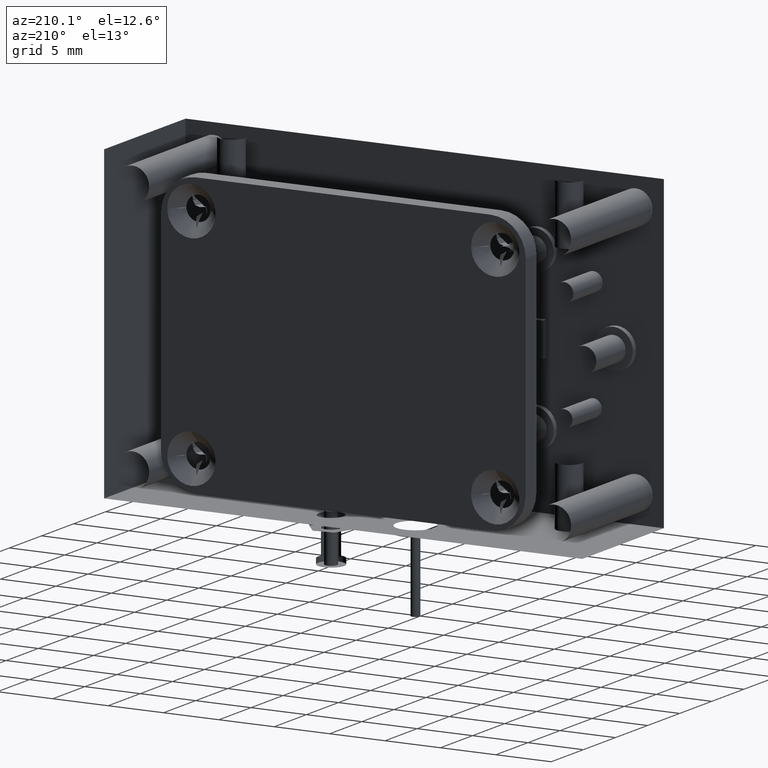
[diagram: clean part render]
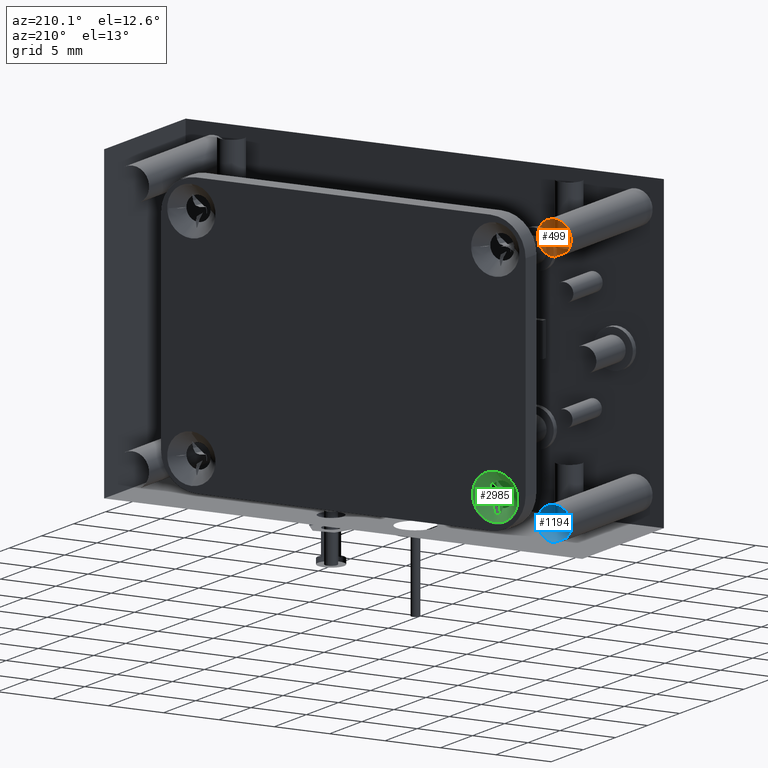
[diagram: same view with three faces highlighted in distinct colors, each labeled with its STEP entity id]
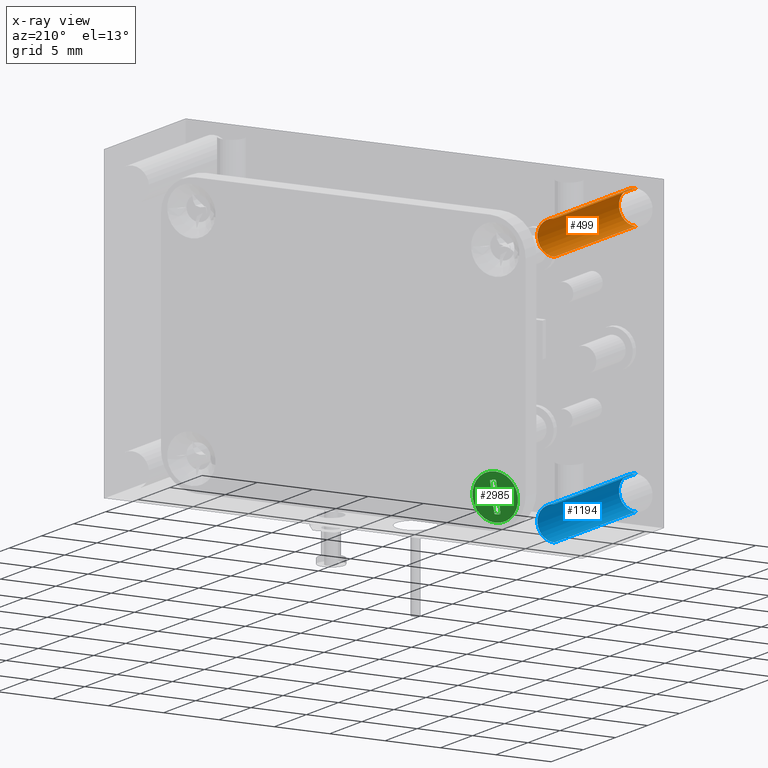
[diagram: x-ray of the same camera — body ghosted, the three highlighted faces saturated]
A machine part, auxiliary view with three faces highlighted in distinct colors.
The next image is the same camera in x-ray (body ghosted, the three faces saturated) — at least one of them is partly hidden behind the body in this view.
Their STEP definitions:

[orange] entity #499 — the highlighted cylindrical surface (edge-blend (fillet) strip) has radius 1.524 mm, axis along (0, 1, 0).
#51 = VERTEX_POINT ( 'NONE', #6882 ) ;
#95 = CARTESIAN_POINT ( 'NONE',  ( -0.8393176255151992800, 2.059071440405353400, 0.9365758433327454600 ) ) ;
#184 = DIRECTION ( 'NONE',  ( 0.0000000000000000000, 1.000000000000000000, 0.0000000000000000000 ) ) ;
#256 = DIRECTION ( 'NONE',  ( -0.0000000000000000000, -1.000000000000000000, -0.0000000000000000000 ) ) ;
#366 = CARTESIAN_POINT ( 'NONE',  ( -0.8393176255151992800, 2.059071440405353400, 0.8765758433327455200 ) ) ;
#394 = EDGE_CURVE ( 'NONE', #4645, #51, #834, .T. ) ;
#499 = ADVANCED_FACE ( 'NONE', ( #4129 ), #7767, .T. ) ;
#710 = DIRECTION ( 'NONE',  ( -0.0000000000000000000, -1.000000000000000000, -0.0000000000000000000 ) ) ;
#834 = CIRCLE ( 'NONE', #3010, 0.05999999999999990800 ) ;
#965 = DIRECTION ( 'NONE',  ( 0.0000000000000000000, 1.000000000000000000, 0.0000000000000000000 ) ) ;
#1040 = CARTESIAN_POINT ( 'NONE',  ( -0.8393176255151992800, 2.059071440405353400, 0.9365758433327454600 ) ) ;
#1469 = CARTESIAN_POINT ( 'NONE',  ( -0.8393176255151992800, 1.559071440405353200, 0.9365758433327454600 ) ) ;
#1525 = CARTESIAN_POINT ( 'NONE',  ( -0.8393176255151992800, 1.559071440405353200, 0.9965758433327452900 ) ) ;
#1807 = ORIENTED_EDGE ( 'NONE', *, *, #3062, .F. ) ;
#2604 = LINE ( 'NONE', #3885, #7151 ) ;
#2918 = DIRECTION ( 'NONE',  ( 0.0000000000000000000, 0.0000000000000000000, 1.000000000000000000 ) ) ;
#3010 = AXIS2_PLACEMENT_3D ( 'NONE', #95, #710, #5786 ) ;
#3062 = EDGE_CURVE ( 'NONE', #6809, #3542, #3183, .T. ) ;
#3183 = CIRCLE ( 'NONE', #5428, 0.05999999999999990800 ) ;
#3542 = VERTEX_POINT ( 'NONE', #1525 ) ;
#3570 = EDGE_CURVE ( 'NONE', #3542, #51, #3974, .T. ) ;
#3730 = ORIENTED_EDGE ( 'NONE', *, *, #394, .T. ) ;
#3885 = CARTESIAN_POINT ( 'NONE',  ( -0.8393176255151992800, 2.059071440405353400, 0.8765758433327455200 ) ) ;
#3974 = LINE ( 'NONE', #4643, #5142 ) ;
#4129 = FACE_OUTER_BOUND ( 'NONE', #7302, .T. ) ;
#4643 = CARTESIAN_POINT ( 'NONE',  ( -0.8393176255151992800, 2.059071440405353400, 0.9965758433327452900 ) ) ;
#4645 = VERTEX_POINT ( 'NONE', #366 ) ;
#4646 = DIRECTION ( 'NONE',  ( 0.0000000000000000000, 0.0000000000000000000, 1.000000000000000000 ) ) ;
#4669 = DIRECTION ( 'NONE',  ( 0.0000000000000000000, 1.000000000000000000, 0.0000000000000000000 ) ) ;
#5142 = VECTOR ( 'NONE', #965, 39.37007874015748100 ) ;
#5428 = AXIS2_PLACEMENT_3D ( 'NONE', #1469, #256, #4646 ) ;
#5786 = DIRECTION ( 'NONE',  ( 0.0000000000000000000, 0.0000000000000000000, 1.000000000000000000 ) ) ;
#6421 = AXIS2_PLACEMENT_3D ( 'NONE', #1040, #4669, #2918 ) ;
#6703 = ORIENTED_EDGE ( 'NONE', *, *, #7576, .T. ) ;
#6736 = ORIENTED_EDGE ( 'NONE', *, *, #3570, .F. ) ;
#6809 = VERTEX_POINT ( 'NONE', #7511 ) ;
#6882 = CARTESIAN_POINT ( 'NONE',  ( -0.8393176255151992800, 2.059071440405353400, 0.9965758433327452900 ) ) ;
#7151 = VECTOR ( 'NONE', #184, 39.37007874015748100 ) ;
#7302 = EDGE_LOOP ( 'NONE', ( #1807, #6703, #3730, #6736 ) ) ;
#7511 = CARTESIAN_POINT ( 'NONE',  ( -0.8393176255151992800, 1.559071440405353200, 0.8765758433327455200 ) ) ;
#7576 = EDGE_CURVE ( 'NONE', #6809, #4645, #2604, .T. ) ;
#7767 = CYLINDRICAL_SURFACE ( 'NONE', #6421, 0.05999999999999990800 ) ;

[blue] entity #1194 — the highlighted cylindrical surface (edge-blend (fillet) strip) has radius 1.524 mm, axis along (0, 1, 0).
#28 = CARTESIAN_POINT ( 'NONE',  ( -0.8393176255151992800, 2.059071440405353400, -0.02342415666725442700 ) ) ;
#40 = AXIS2_PLACEMENT_3D ( 'NONE', #5148, #1432, #2054 ) ;
#169 = LINE ( 'NONE', #7915, #3172 ) ;
#542 = DIRECTION ( 'NONE',  ( 0.0000000000000000000, 1.000000000000000000, 0.0000000000000000000 ) ) ;
#727 = FACE_OUTER_BOUND ( 'NONE', #4775, .T. ) ;
#905 = DIRECTION ( 'NONE',  ( 0.0000000000000000000, 0.0000000000000000000, 1.000000000000000000 ) ) ;
#1194 = ADVANCED_FACE ( 'NONE', ( #727 ), #1506, .T. ) ;
#1199 = DIRECTION ( 'NONE',  ( -0.0000000000000000000, -1.000000000000000000, -0.0000000000000000000 ) ) ;
#1268 = DIRECTION ( 'NONE',  ( 0.0000000000000000000, 1.000000000000000000, 0.0000000000000000000 ) ) ;
#1432 = DIRECTION ( 'NONE',  ( 0.0000000000000000000, 1.000000000000000000, 0.0000000000000000000 ) ) ;
#1483 = EDGE_CURVE ( 'NONE', #4902, #7183, #7211, .T. ) ;
#1506 = CYLINDRICAL_SURFACE ( 'NONE', #40, 0.05999999999999990800 ) ;
#1905 = DIRECTION ( 'NONE',  ( 0.0000000000000000000, 0.0000000000000000000, 1.000000000000000000 ) ) ;
#2054 = DIRECTION ( 'NONE',  ( 0.0000000000000000000, 0.0000000000000000000, 1.000000000000000000 ) ) ;
#3172 = VECTOR ( 'NONE', #542, 39.37007874015748100 ) ;
#3260 = CARTESIAN_POINT ( 'NONE',  ( -0.8393176255151992800, 1.559071440405353200, 0.09657584333274538100 ) ) ;
#3373 = CARTESIAN_POINT ( 'NONE',  ( -0.8393176255151992800, 1.559071440405353200, 0.03657584333274548100 ) ) ;
#3782 = CARTESIAN_POINT ( 'NONE',  ( -0.8393176255151992800, 2.059071440405353400, -0.02342415666725442700 ) ) ;
#3791 = CIRCLE ( 'NONE', #7035, 0.05999999999999990800 ) ;
#3994 = DIRECTION ( 'NONE',  ( -0.0000000000000000000, -1.000000000000000000, -0.0000000000000000000 ) ) ;
#4025 = VERTEX_POINT ( 'NONE', #5884 ) ;
#4775 = EDGE_LOOP ( 'NONE', ( #5507, #6858, #6996, #6436 ) ) ;
#4826 = VECTOR ( 'NONE', #1268, 39.37007874015748100 ) ;
#4841 = AXIS2_PLACEMENT_3D ( 'NONE', #6157, #1199, #1905 ) ;
#4902 = VERTEX_POINT ( 'NONE', #3782 ) ;
#5148 = CARTESIAN_POINT ( 'NONE',  ( -0.8393176255151992800, 2.059071440405353400, 0.03657584333274548100 ) ) ;
#5268 = EDGE_CURVE ( 'NONE', #6385, #7183, #169, .T. ) ;
#5507 = ORIENTED_EDGE ( 'NONE', *, *, #6465, .F. ) ;
#5884 = CARTESIAN_POINT ( 'NONE',  ( -0.8393176255151992800, 1.559071440405353200, -0.02342415666725442700 ) ) ;
#5911 = CARTESIAN_POINT ( 'NONE',  ( -0.8393176255151992800, 2.059071440405353400, 0.09657584333274538100 ) ) ;
#6157 = CARTESIAN_POINT ( 'NONE',  ( -0.8393176255151992800, 2.059071440405353400, 0.03657584333274548100 ) ) ;
#6385 = VERTEX_POINT ( 'NONE', #3260 ) ;
#6436 = ORIENTED_EDGE ( 'NONE', *, *, #5268, .F. ) ;
#6465 = EDGE_CURVE ( 'NONE', #4025, #6385, #3791, .T. ) ;
#6858 = ORIENTED_EDGE ( 'NONE', *, *, #7829, .T. ) ;
#6996 = ORIENTED_EDGE ( 'NONE', *, *, #1483, .T. ) ;
#7035 = AXIS2_PLACEMENT_3D ( 'NONE', #3373, #3994, #905 ) ;
#7183 = VERTEX_POINT ( 'NONE', #5911 ) ;
#7211 = CIRCLE ( 'NONE', #4841, 0.05999999999999990800 ) ;
#7792 = LINE ( 'NONE', #28, #4826 ) ;
#7829 = EDGE_CURVE ( 'NONE', #4025, #4902, #7792, .T. ) ;
#7915 = CARTESIAN_POINT ( 'NONE',  ( -0.8393176255151992800, 2.059071440405353400, 0.09657584333274538100 ) ) ;

[green] entity #2985 — the highlighted planar face has unit normal (-0, -1, -0).
#78 = VECTOR ( 'NONE', #1760, 39.37007874015748900 ) ;
#155 = ORIENTED_EDGE ( 'NONE', *, *, #205, .T. ) ;
#156 = LINE ( 'NONE', #4709, #826 ) ;
#158 = ORIENTED_EDGE ( 'NONE', *, *, #3581, .T. ) ;
#170 = CIRCLE ( 'NONE', #4952, 0.05400000000119558500 ) ;
#171 = LINE ( 'NONE', #501, #7698 ) ;
#175 = VECTOR ( 'NONE', #1778, 39.37007874015748100 ) ;
#178 = CARTESIAN_POINT ( 'NONE',  ( -0.6832499092327498600, 2.058571440406308000, 0.09387236906173145000 ) ) ;
#181 = VECTOR ( 'NONE', #1459, 39.37007874015748100 ) ;
#200 = EDGE_CURVE ( 'NONE', #6327, #332, #361, .T. ) ;
#205 = EDGE_CURVE ( 'NONE', #220, #1063, #3462, .T. ) ;
#220 = VERTEX_POINT ( 'NONE', #2013 ) ;
#238 = AXIS2_PLACEMENT_3D ( 'NONE', #2693, #5064, #1405 ) ;
#257 = VECTOR ( 'NONE', #7611, 39.37007874015748100 ) ;
#272 = LINE ( 'NONE', #7219, #78 ) ;
#332 = VERTEX_POINT ( 'NONE', #901 ) ;
#361 = CIRCLE ( 'NONE', #238, 0.08099999999659131300 ) ;
#362 = ORIENTED_EDGE ( 'NONE', *, *, #543, .T. ) ;
#370 = VECTOR ( 'NONE', #6411, 39.37007874015748900 ) ;
#388 = DIRECTION ( 'NONE',  ( -2.500602361698261400E-015, 1.000000000000000000, 3.811847815847947800E-016 ) ) ;
#445 = EDGE_CURVE ( 'NONE', #6315, #2494, #6747, .T. ) ;
#471 = LINE ( 'NONE', #3213, #2322 ) ;
#497 = CARTESIAN_POINT ( 'NONE',  ( -0.6293176255151993200, 2.058571440404362000, 0.09657584333274524300 ) ) ;
#501 = CARTESIAN_POINT ( 'NONE',  ( -0.6351939347924855400, 2.058571440405353200, 0.1296940780815344600 ) ) ;
#543 = EDGE_CURVE ( 'NONE', #332, #6327, #1219, .T. ) ;
#556 = EDGE_CURVE ( 'NONE', #7578, #4805, #6167, .T. ) ;
#615 = CARTESIAN_POINT ( 'NONE',  ( -0.6293176255151993200, 2.058571440406599800, 0.09657584333274524300 ) ) ;
#668 = ORIENTED_EDGE ( 'NONE', *, *, #2166, .T. ) ;
#741 = CARTESIAN_POINT ( 'NONE',  ( -0.6799948677348935900, 2.058571440406014900, 0.1152256991263523200 ) ) ;
#742 = CARTESIAN_POINT ( 'NONE',  ( -0.6293176255151993200, 2.058571440404362000, 0.01557584333615396000 ) ) ;
#750 = EDGE_CURVE ( 'NONE', #4805, #2010, #156, .T. ) ;
#773 = CARTESIAN_POINT ( 'NONE',  ( -0.6833176255164291600, 2.058571440406599800, 0.09657584333274524300 ) ) ;
#797 = CARTESIAN_POINT ( 'NONE',  ( -0.6624358602639884900, 2.058571440405353200, 0.09069953405545884400 ) ) ;
#826 = VECTOR ( 'NONE', #1024, 39.37007874015748100 ) ;
#901 = CARTESIAN_POINT ( 'NONE',  ( -0.6293176255151993200, 2.058571440404362000, 0.1775758433293365400 ) ) ;
#902 = VERTEX_POINT ( 'NONE', #5404 ) ;
#932 = LINE ( 'NONE', #5038, #1896 ) ;
#937 = ORIENTED_EDGE ( 'NONE', *, *, #2058, .T. ) ;
#1024 = DIRECTION ( 'NONE',  ( -0.5175385119822605300, 0.0000000000000000000, -0.8556599141102658700 ) ) ;
#1058 = DIRECTION ( 'NONE',  ( 0.9885800955833311500, 0.0000000000000000000, -0.1506963656378338400 ) ) ;
#1063 = VERTEX_POINT ( 'NONE', #4944 ) ;
#1069 = VECTOR ( 'NONE', #2150, 39.37007874015748900 ) ;
#1103 = DIRECTION ( 'NONE',  ( 0.0000000000000000000, 0.0000000000000000000, 1.000000000000000000 ) ) ;
#1131 = EDGE_CURVE ( 'NONE', #902, #7738, #932, .T. ) ;
#1183 = CARTESIAN_POINT ( 'NONE',  ( -0.6293176255151993200, 2.058571440404362000, 0.09657584333274527000 ) ) ;
#1195 = DIRECTION ( 'NONE',  ( 0.0000000000000000000, 0.0000000000000000000, 1.000000000000000000 ) ) ;
#1219 = CIRCLE ( 'NONE', #4610, 0.08099999999659131300 ) ;
#1279 = ORIENTED_EDGE ( 'NONE', *, *, #1131, .T. ) ;
#1305 = VERTEX_POINT ( 'NONE', #4176 ) ;
#1363 = DIRECTION ( 'NONE',  ( -0.2390879363090134300, 0.0000000000000000000, 0.9709979190047202100 ) ) ;
#1366 = DIRECTION ( 'NONE',  ( 0.1506963656378320600, 0.0000000000000000000, 0.9885800955833313800 ) ) ;
#1405 = DIRECTION ( 'NONE',  ( 0.0000000000000000000, 0.0000000000000000000, 1.000000000000000000 ) ) ;
#1417 = DIRECTION ( 'NONE',  ( -2.672306940329245800E-018, -1.000000000000000000, -1.096216036026727000E-016 ) ) ;
#1449 = LINE ( 'NONE', #1555, #1069 ) ;
#1459 = DIRECTION ( 'NONE',  ( 0.2390879363090052900, 0.0000000000000000000, -0.9709979190047222100 ) ) ;
#1464 = CIRCLE ( 'NONE', #7478, 0.05400000000119555000 ) ;
#1555 = CARTESIAN_POINT ( 'NONE',  ( -0.6435337617395641100, 2.058571440405353200, 0.1159056247703031800 ) ) ;
#1742 = VERTEX_POINT ( 'NONE', #5859 ) ;
#1760 = DIRECTION ( 'NONE',  ( -0.8556599141102641000, 0.0000000000000000000, 0.5175385119822635300 ) ) ;
#1778 = DIRECTION ( 'NONE',  ( -0.9885800955833322600, 0.0000000000000000000, 0.1506963656378265100 ) ) ;
#1812 = DIRECTION ( 'NONE',  ( -0.0000000000000000000, 1.000000000000000000, 0.0000000000000000000 ) ) ;
#1831 = LINE ( 'NONE', #2716, #181 ) ;
#1869 = CARTESIAN_POINT ( 'NONE',  ( -0.6151014892908344100, 2.058571440405353200, 0.07724606189518742900 ) ) ;
#1896 = VECTOR ( 'NONE', #1366, 39.37007874015748900 ) ;
#2010 = VERTEX_POINT ( 'NONE', #3927 ) ;
#2013 = CARTESIAN_POINT ( 'NONE',  ( -0.6099878440776412800, 2.058571440405353200, 0.1107919795571099800 ) ) ;
#2019 = VECTOR ( 'NONE', #5425, 39.37007874015748900 ) ;
#2031 = CARTESIAN_POINT ( 'NONE',  ( -0.5994544322641871500, 2.058571440405353200, 0.08109882254543178400 ) ) ;
#2058 = EDGE_CURVE ( 'NONE', #5355, #220, #1831, .T. ) ;
#2074 = CARTESIAN_POINT ( 'NONE',  ( -0.6320210997862683000, 2.058571440404525000, 0.1505081270495462800 ) ) ;
#2121 = CIRCLE ( 'NONE', #2557, 0.05400000000036232100 ) ;
#2131 = VECTOR ( 'NONE', #5113, 39.37007874015748900 ) ;
#2150 = DIRECTION ( 'NONE',  ( 0.5175385119822685200, 0.0000000000000000000, 0.8556599141102609900 ) ) ;
#2166 = EDGE_CURVE ( 'NONE', #2010, #7932, #7513, .T. ) ;
#2211 = DIRECTION ( 'NONE',  ( -1.000000000000000000, 0.0000000000000000000, 0.0000000000000000000 ) ) ;
#2235 = EDGE_CURVE ( 'NONE', #7932, #902, #170, .T. ) ;
#2264 = EDGE_CURVE ( 'NONE', #1063, #7846, #7143, .T. ) ;
#2274 = EDGE_CURVE ( 'NONE', #1742, #7924, #272, .T. ) ;
#2322 = VECTOR ( 'NONE', #1363, 39.37007874015748100 ) ;
#2393 = EDGE_CURVE ( 'NONE', #6245, #3773, #2121, .T. ) ;
#2422 = LINE ( 'NONE', #5423, #5119 ) ;
#2448 = CARTESIAN_POINT ( 'NONE',  ( -0.6138406047278856000, 2.058571440405353200, 0.1264390365837572400 ) ) ;
#2485 = EDGE_CURVE ( 'NONE', #7738, #1742, #471, .T. ) ;
#2494 = VERTEX_POINT ( 'NONE', #773 ) ;
#2509 = ORIENTED_EDGE ( 'NONE', *, *, #2235, .T. ) ;
#2557 = AXIS2_PLACEMENT_3D ( 'NONE', #1183, #1812, #6140 ) ;
#2653 = CARTESIAN_POINT ( 'NONE',  ( -0.6266141512441798500, 2.058571440406309800, 0.04264355961522901800 ) ) ;
#2693 = CARTESIAN_POINT ( 'NONE',  ( -0.6293176255151993200, 2.058571440404362000, 0.09657584333274524300 ) ) ;
#2716 = CARTESIAN_POINT ( 'NONE',  ( -0.6138406047278854900, 2.058571440405353200, 0.1264390365837572100 ) ) ;
#2805 = LINE ( 'NONE', #5612, #175 ) ;
#2847 = EDGE_CURVE ( 'NONE', #1305, #6473, #171, .T. ) ;
#2985 = ADVANCED_FACE ( 'NONE', ( #6765, #3772 ), #7592, .T. ) ;
#3213 = CARTESIAN_POINT ( 'NONE',  ( -0.6447946463025128200, 2.058571440405353200, 0.06671265008173318800 ) ) ;
#3216 = ORIENTED_EDGE ( 'NONE', *, *, #7077, .T. ) ;
#3253 = EDGE_CURVE ( 'NONE', #7924, #6315, #6671, .T. ) ;
#3331 = ORIENTED_EDGE ( 'NONE', *, *, #200, .T. ) ;
#3340 = ORIENTED_EDGE ( 'NONE', *, *, #2274, .T. ) ;
#3348 = VERTEX_POINT ( 'NONE', #7746 ) ;
#3410 = CARTESIAN_POINT ( 'NONE',  ( -0.6234413162379126600, 2.058571440405353200, 0.06345760858395607700 ) ) ;
#3436 = CARTESIAN_POINT ( 'NONE',  ( -0.6591808187662114800, 2.058571440405353200, 0.1120528641200589500 ) ) ;
#3462 = LINE ( 'NONE', #7535, #257 ) ;
#3581 = EDGE_CURVE ( 'NONE', #5173, #1305, #1449, .T. ) ;
#3632 = ORIENTED_EDGE ( 'NONE', *, *, #445, .T. ) ;
#3770 = CARTESIAN_POINT ( 'NONE',  ( -0.6106677697217602900, 2.058571440405353200, 0.1472530855513578500 ) ) ;
#3772 = FACE_BOUND ( 'NONE', #7310, .T. ) ;
#3773 = VERTEX_POINT ( 'NONE', #4452 ) ;
#3836 = ORIENTED_EDGE ( 'NONE', *, *, #2264, .T. ) ;
#3847 = CARTESIAN_POINT ( 'NONE',  ( -0.6624358602639884900, 2.058571440405353200, 0.09069953405545884400 ) ) ;
#3861 = DIRECTION ( 'NONE',  ( 0.0000000000000000000, 1.096216036026727000E-016, -1.000000000000000000 ) ) ;
#3875 = DIRECTION ( 'NONE',  ( 0.0000000000000000000, 0.0000000000000000000, 1.000000000000000000 ) ) ;
#3927 = CARTESIAN_POINT ( 'NONE',  ( -0.6234413162379126600, 2.058571440405353200, 0.06345760858395609000 ) ) ;
#4017 = ORIENTED_EDGE ( 'NONE', *, *, #4383, .T. ) ;
#4176 = CARTESIAN_POINT ( 'NONE',  ( -0.6351939347924855400, 2.058571440405353200, 0.1296940780815344600 ) ) ;
#4194 = DIRECTION ( 'NONE',  ( -3.811847815732838200E-016, 1.000000000000000000, -2.500602361701647100E-015 ) ) ;
#4202 = ORIENTED_EDGE ( 'NONE', *, *, #6165, .T. ) ;
#4207 = ORIENTED_EDGE ( 'NONE', *, *, #7384, .T. ) ;
#4282 = DIRECTION ( 'NONE',  ( -0.9709979190047199900, 0.0000000000000000000, -0.2390879363090142900 ) ) ;
#4290 = CARTESIAN_POINT ( 'NONE',  ( -0.6357975692376259800, 2.058571440405353200, 0.05406689922266198800 ) ) ;
#4370 = DIRECTION ( 'NONE',  ( 0.9709979190047225400, 0.0000000000000000000, 0.2390879363090032700 ) ) ;
#4383 = EDGE_CURVE ( 'NONE', #2494, #5485, #5524, .T. ) ;
#4404 = EDGE_CURVE ( 'NONE', #3773, #5355, #4739, .T. ) ;
#4437 = DIRECTION ( 'NONE',  ( -2.500602361698261400E-015, 1.000000000000000000, 3.811847815847947800E-016 ) ) ;
#4452 = CARTESIAN_POINT ( 'NONE',  ( -0.6106677697217041100, 2.058571440404698200, 0.1472530855518191500 ) ) ;
#4455 = ORIENTED_EDGE ( 'NONE', *, *, #2485, .T. ) ;
#4506 = ORIENTED_EDGE ( 'NONE', *, *, #2847, .T. ) ;
#4610 = AXIS2_PLACEMENT_3D ( 'NONE', #497, #6105, #1195 ) ;
#4688 = AXIS2_PLACEMENT_3D ( 'NONE', #6894, #4437, #6874 ) ;
#4709 = CARTESIAN_POINT ( 'NONE',  ( -0.6151014892908344100, 2.058571440405353200, 0.07724606189518742900 ) ) ;
#4739 = LINE ( 'NONE', #3770, #2131 ) ;
#4766 = AXIS2_PLACEMENT_3D ( 'NONE', #5943, #388, #2211 ) ;
#4805 = VERTEX_POINT ( 'NONE', #1869 ) ;
#4860 = CARTESIAN_POINT ( 'NONE',  ( -0.5994544322641871500, 2.058571440405353200, 0.08109882254543178400 ) ) ;
#4874 = EDGE_CURVE ( 'NONE', #7128, #5173, #6949, .T. ) ;
#4944 = CARTESIAN_POINT ( 'NONE',  ( -0.5961993907664099300, 2.058571440405353200, 0.1024521526100314500 ) ) ;
#4952 = AXIS2_PLACEMENT_3D ( 'NONE', #7254, #4194, #1103 ) ;
#5023 = VECTOR ( 'NONE', #6555, 39.37007874015748100 ) ;
#5038 = CARTESIAN_POINT ( 'NONE',  ( -0.6479674813086379000, 2.058571440405353200, 0.04589860111413252700 ) ) ;
#5064 = DIRECTION ( 'NONE',  ( -0.0000000000000000000, -1.000000000000000000, -0.0000000000000000000 ) ) ;
#5113 = DIRECTION ( 'NONE',  ( -0.1506963656378354200, 0.0000000000000000000, -0.9885800955833308200 ) ) ;
#5119 = VECTOR ( 'NONE', #1058, 39.37007874015748100 ) ;
#5173 = VERTEX_POINT ( 'NONE', #7297 ) ;
#5355 = VERTEX_POINT ( 'NONE', #2448 ) ;
#5404 = CARTESIAN_POINT ( 'NONE',  ( -0.6479674813088012200, 2.058571440406018000, 0.04589860111308482300 ) ) ;
#5423 = CARTESIAN_POINT ( 'NONE',  ( -0.6799948677338119000, 2.058571440405353200, 0.1152256991261840500 ) ) ;
#5425 = DIRECTION ( 'NONE',  ( 0.9885800955833307100, 0.0000000000000000000, -0.1506963656378371400 ) ) ;
#5485 = VERTEX_POINT ( 'NONE', #741 ) ;
#5524 = CIRCLE ( 'NONE', #4688, 0.05400000000123003600 ) ;
#5548 = ORIENTED_EDGE ( 'NONE', *, *, #556, .T. ) ;
#5573 = CARTESIAN_POINT ( 'NONE',  ( -0.6293176255151993200, 2.058571440404362000, 0.1505758433331075800 ) ) ;
#5586 = CARTESIAN_POINT ( 'NONE',  ( -0.5753853417976830800, 2.058571440406309800, 0.09927931760376407200 ) ) ;
#5612 = CARTESIAN_POINT ( 'NONE',  ( -0.5786403832965866200, 2.058571440405353200, 0.07792598753930682400 ) ) ;
#5614 = VECTOR ( 'NONE', #4370, 39.37007874015748900 ) ;
#5827 = DIRECTION ( 'NONE',  ( -0.0000000000000000000, 1.000000000000000000, 0.0000000000000000000 ) ) ;
#5859 = CARTESIAN_POINT ( 'NONE',  ( -0.6486474069527571300, 2.058571440405353200, 0.08235970710838040600 ) ) ;
#5939 = ORIENTED_EDGE ( 'NONE', *, *, #4404, .T. ) ;
#5943 = CARTESIAN_POINT ( 'NONE',  ( -0.6293176255151993200, 2.058571440406599800, 0.09657584333274524300 ) ) ;
#6032 = DIRECTION ( 'NONE',  ( 0.1506963656378318700, 0.0000000000000000000, 0.9885800955833313800 ) ) ;
#6105 = DIRECTION ( 'NONE',  ( -0.0000000000000000000, -1.000000000000000000, -0.0000000000000000000 ) ) ;
#6140 = DIRECTION ( 'NONE',  ( 0.0000000000000000000, 0.0000000000000000000, 1.000000000000000000 ) ) ;
#6165 = EDGE_CURVE ( 'NONE', #7846, #3348, #1464, .T. ) ;
#6167 = LINE ( 'NONE', #4860, #7587 ) ;
#6206 = CARTESIAN_POINT ( 'NONE',  ( -0.6591808187662114800, 2.058571440405353200, 0.1120528641200589500 ) ) ;
#6245 = VERTEX_POINT ( 'NONE', #5573 ) ;
#6315 = VERTEX_POINT ( 'NONE', #178 ) ;
#6327 = VERTEX_POINT ( 'NONE', #742 ) ;
#6411 = DIRECTION ( 'NONE',  ( -0.9885800955833319300, 0.0000000000000000000, 0.1506963656378287100 ) ) ;
#6473 = VERTEX_POINT ( 'NONE', #2074 ) ;
#6540 = ORIENTED_EDGE ( 'NONE', *, *, #3253, .T. ) ;
#6555 = DIRECTION ( 'NONE',  ( -0.1506963656378258700, 0.0000000000000000000, -0.9885800955833324900 ) ) ;
#6608 = ORIENTED_EDGE ( 'NONE', *, *, #7260, .T. ) ;
#6626 = AXIS2_PLACEMENT_3D ( 'NONE', #7002, #5827, #3875 ) ;
#6671 = LINE ( 'NONE', #797, #370 ) ;
#6691 = CARTESIAN_POINT ( 'NONE',  ( -0.5961993907664100400, 2.058571440405353200, 0.1024521526100314500 ) ) ;
#6747 = CIRCLE ( 'NONE', #4766, 0.05400000000123003600 ) ;
#6764 = DIRECTION ( 'NONE',  ( 0.0000000000000000000, 0.0000000000000000000, 1.000000000000000000 ) ) ;
#6765 = FACE_OUTER_BOUND ( 'NONE', #7101, .T. ) ;
#6812 = DIRECTION ( 'NONE',  ( -3.811847815732838200E-016, 1.000000000000000000, -2.500602361701647100E-015 ) ) ;
#6874 = DIRECTION ( 'NONE',  ( -1.000000000000000000, 0.0000000000000000000, 0.0000000000000000000 ) ) ;
#6894 = CARTESIAN_POINT ( 'NONE',  ( -0.6293176255151993200, 2.058571440406599800, 0.09657584333274524300 ) ) ;
#6949 = LINE ( 'NONE', #6206, #5614 ) ;
#7002 = CARTESIAN_POINT ( 'NONE',  ( -0.6293176255151993200, 2.058571440404362000, 0.09657584333274527000 ) ) ;
#7077 = EDGE_CURVE ( 'NONE', #6473, #6245, #7262, .T. ) ;
#7101 = EDGE_LOOP ( 'NONE', ( #362, #3331 ) ) ;
#7113 = AXIS2_PLACEMENT_3D ( 'NONE', #4290, #1417, #3861 ) ;
#7128 = VERTEX_POINT ( 'NONE', #3436 ) ;
#7143 = LINE ( 'NONE', #6691, #2019 ) ;
#7219 = CARTESIAN_POINT ( 'NONE',  ( -0.6486474069527571300, 2.058571440405353200, 0.08235970710838040600 ) ) ;
#7254 = CARTESIAN_POINT ( 'NONE',  ( -0.6293176255151993200, 2.058571440406599800, 0.09657584333274524300 ) ) ;
#7260 = EDGE_CURVE ( 'NONE', #5485, #7128, #2422, .T. ) ;
#7262 = CIRCLE ( 'NONE', #6626, 0.05400000000036232100 ) ;
#7297 = CARTESIAN_POINT ( 'NONE',  ( -0.6435337617395641100, 2.058571440405353200, 0.1159056247703031800 ) ) ;
#7310 = EDGE_LOOP ( 'NONE', ( #2509, #1279, #4455, #3340, #6540, #3632, #4017, #6608, #7569, #158, #4506, #3216, #7744, #5939, #937, #155, #3836, #4202, #4207, #5548, #7560, #668 ) ) ;
#7384 = EDGE_CURVE ( 'NONE', #3348, #7578, #2805, .T. ) ;
#7478 = AXIS2_PLACEMENT_3D ( 'NONE', #615, #6812, #6764 ) ;
#7513 = LINE ( 'NONE', #3410, #5023 ) ;
#7535 = CARTESIAN_POINT ( 'NONE',  ( -0.6099878440776412800, 2.058571440405353200, 0.1107919795571099800 ) ) ;
#7560 = ORIENTED_EDGE ( 'NONE', *, *, #750, .T. ) ;
#7569 = ORIENTED_EDGE ( 'NONE', *, *, #4874, .T. ) ;
#7578 = VERTEX_POINT ( 'NONE', #2031 ) ;
#7587 = VECTOR ( 'NONE', #4282, 39.37007874015748100 ) ;
#7592 = PLANE ( 'NONE',  #7113 ) ;
#7611 = DIRECTION ( 'NONE',  ( 0.8556599141102589900, 0.0000000000000000000, -0.5175385119822718500 ) ) ;
#7698 = VECTOR ( 'NONE', #6032, 39.37007874015748900 ) ;
#7738 = VERTEX_POINT ( 'NONE', #7978 ) ;
#7744 = ORIENTED_EDGE ( 'NONE', *, *, #2393, .T. ) ;
#7746 = CARTESIAN_POINT ( 'NONE',  ( -0.5786403832955388000, 2.058571440406018000, 0.07792598753914344000 ) ) ;
#7846 = VERTEX_POINT ( 'NONE', #5586 ) ;
#7924 = VERTEX_POINT ( 'NONE', #3847 ) ;
#7932 = VERTEX_POINT ( 'NONE', #2653 ) ;
#7978 = CARTESIAN_POINT ( 'NONE',  ( -0.6447946463025128200, 2.058571440405353200, 0.06671265008173320200 ) ) ;